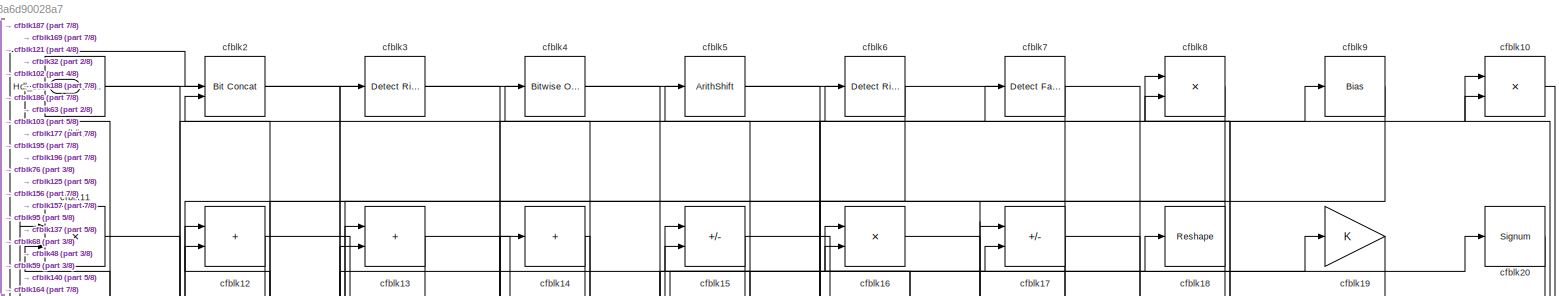
[diagram: root canvas - part 1/8, full width, top band]
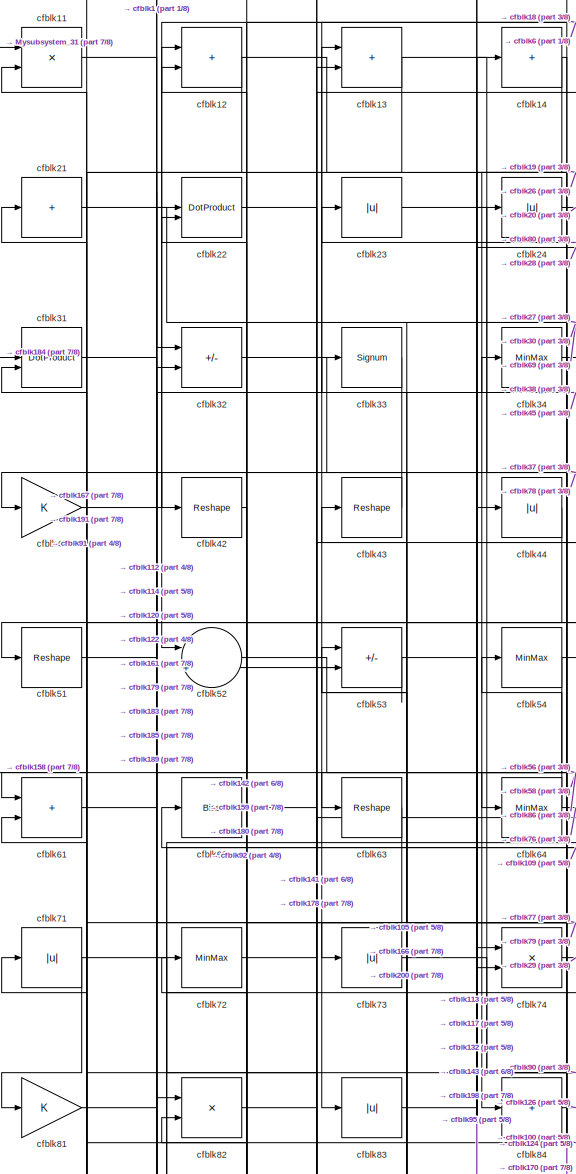
[diagram: root canvas - part 2/8, top left region]
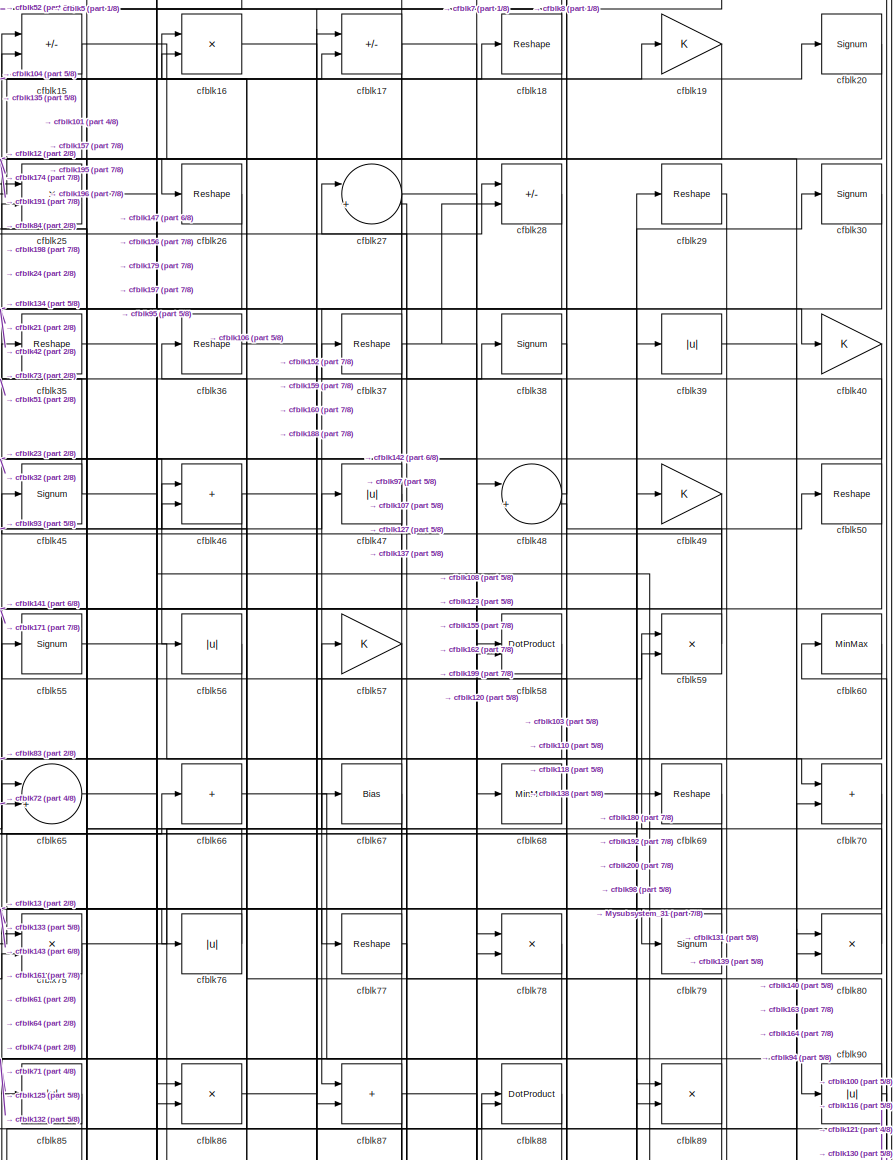
[diagram: root canvas - part 3/8, top right region]
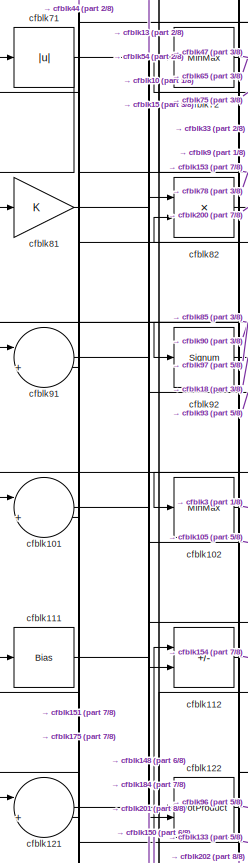
[diagram: root canvas - part 4/8, middle left region]
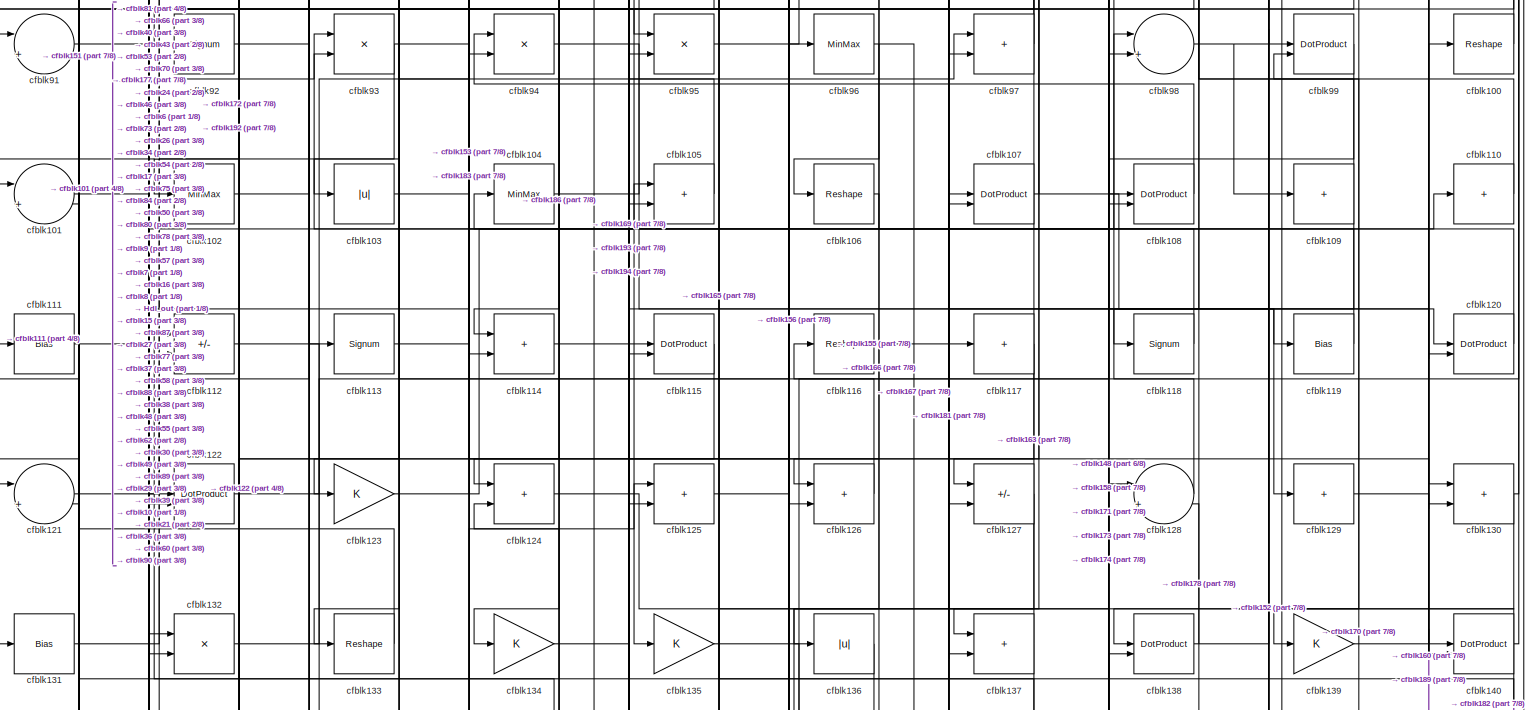
[diagram: root canvas - part 5/8, full width, middle band]
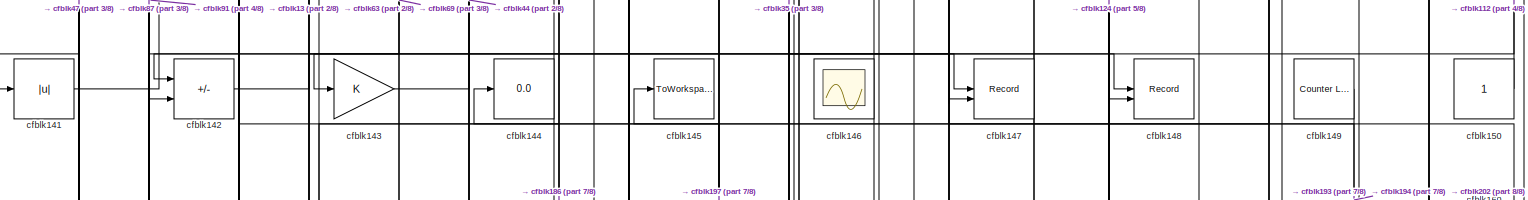
[diagram: root canvas - part 6/8, full width, bottom band]
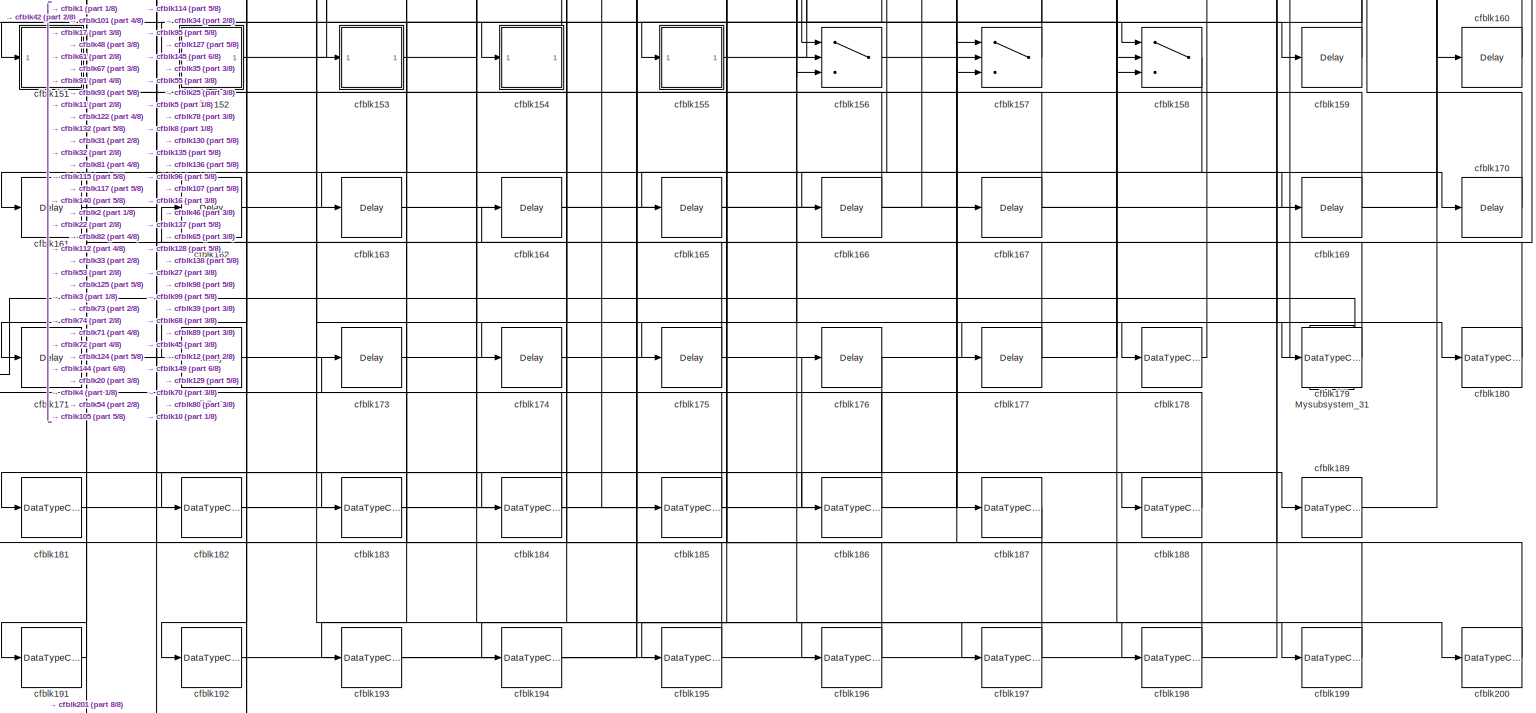
[diagram: root canvas - part 7/8, full width, bottom band]
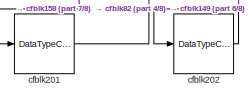
[diagram: root canvas - part 8/8, bottom left region]
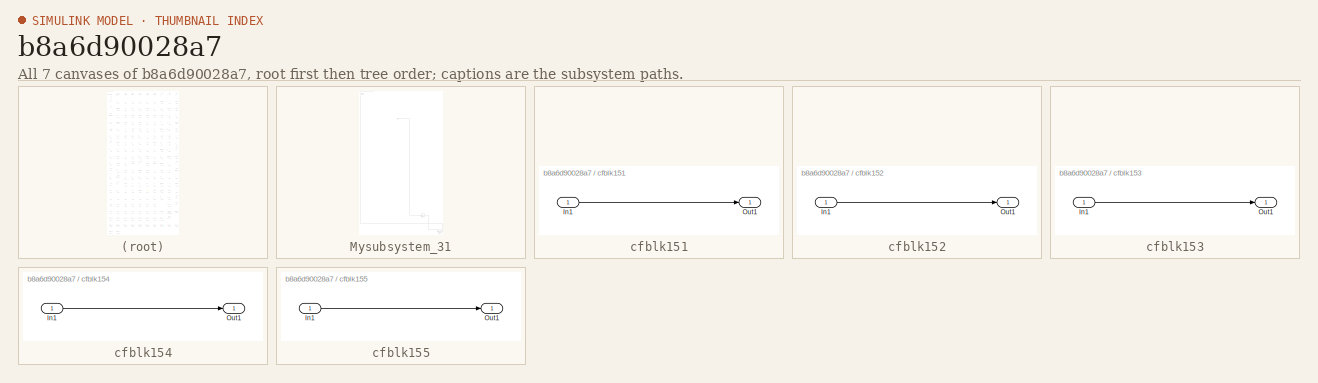
[diagram: thumbnail index - all 7 canvases of the model, root first then tree order]
MODEL slx_b8a6d90028a7
KIND model
CONFIG AbsTol = auto
CONFIG EnableMultiTasking = off
CONFIG FixedStep = auto
CONFIG MaxStep = auto
CONFIG MinStep = auto
CONFIG RelTol = 1e-3
CONFIG SampleTimeConstraint = Unconstrained
CONFIG SolverName = VariableStepAuto
CONFIG StartTime = 0.0
CONFIG StopTime = 10.0
BLOCK [Outport] Hdl_out
  OutDataTypeStr = uint8
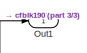
[diagram: Mysubsystem_31 - part 1/3, top left region]
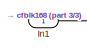
[diagram: Mysubsystem_31 - part 2/3, top center region]
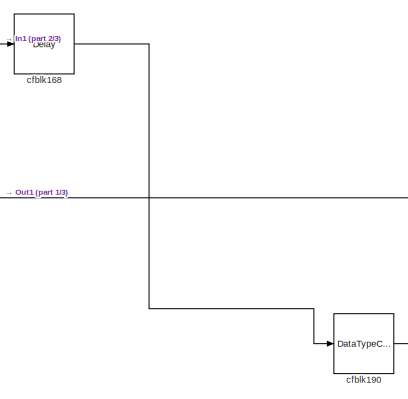
[diagram: Mysubsystem_31 - part 3/3, bottom right region]
BLOCK [SubSystem] Mysubsystem_31
  RTWFcnName = Mysubsystem_31
  RTWFcnNameOpts = User specified
  RTWFileNameOpts = Use function name
  RTWSystemCode = Reusable function
  TreatAsAtomicUnit = on
BLOCK [Inport] Mysubsystem_31/In1
BLOCK [Outport] Mysubsystem_31/Out1
BLOCK [Delay] Mysubsystem_31/cfblk168
  InputPortMap = u0
  SampleTime = 1
BLOCK [DataTypeConversion] Mysubsystem_31/cfblk190
  OutDataTypeStr = uint8
  RndMeth = Floor
  SaturateOnIntegerOverflow = off
BLOCK [Reference] cfblk1  REF=simulink/Logic and Bit
Operations/Detect
Change
  LibrarySourceBlock = hdlsllib/Logic and Bit\nOperations/Detect\nChange
  SourceBlock = simulink/Logic and Bit\nOperations/Detect\nChange
  SourceType = Detect Change
BLOCK [Product] cfblk10
  Inputs = */
  OutDataTypeStr = uint8
  RndMeth = Zero
  SaturateOnIntegerOverflow = on
BLOCK [Reshape] cfblk100
BLOCK [Sum] cfblk101
  Inputs = |++
  OutDataTypeStr = uint8
BLOCK [MinMax] cfblk102
  OutDataTypeStr = uint8
BLOCK [Abs] cfblk103
  OutDataTypeStr = uint8
  SaturateOnIntegerOverflow = off
BLOCK [MinMax] cfblk104
  OutDataTypeStr = uint8
BLOCK [Sum] cfblk105
  IconShape = rectangular
  OutDataTypeStr = uint8
BLOCK [Reshape] cfblk106
BLOCK [DotProduct] cfblk107
  OutDataTypeStr = uint8
BLOCK [DotProduct] cfblk108
  OutDataTypeStr = uint8
BLOCK [Sum] cfblk109
  IconShape = rectangular
  Inputs = +
  OutDataTypeStr = uint8
BLOCK [Product] cfblk11
  Inputs = */
  OutDataTypeStr = uint8
  RndMeth = Zero
  SaturateOnIntegerOverflow = on
BLOCK [Sum] cfblk110
  IconShape = rectangular
  Inputs = +
  OutDataTypeStr = uint8
BLOCK [Bias] cfblk111
  Bias = 0.0
  SaturateOnIntegerOverflow = off
BLOCK [Sum] cfblk112
  IconShape = rectangular
  Inputs = +-
  OutDataTypeStr = uint8
BLOCK [Signum] cfblk113
BLOCK [Sum] cfblk114
  IconShape = rectangular
  OutDataTypeStr = uint8
BLOCK [DotProduct] cfblk115
  OutDataTypeStr = uint8
BLOCK [Reshape] cfblk116
BLOCK [Sum] cfblk117
  IconShape = rectangular
  Inputs = +
  OutDataTypeStr = uint8
BLOCK [Signum] cfblk118
BLOCK [Bias] cfblk119
  Bias = 0.0
  SaturateOnIntegerOverflow = off
BLOCK [Sum] cfblk12
  IconShape = rectangular
  OutDataTypeStr = uint8
BLOCK [DotProduct] cfblk120
  OutDataTypeStr = uint8
BLOCK [Sum] cfblk121
  Inputs = |++
  OutDataTypeStr = uint8
BLOCK [DotProduct] cfblk122
  OutDataTypeStr = uint8
BLOCK [Gain] cfblk123
  OutDataTypeStr = uint8
BLOCK [Sum] cfblk124
  IconShape = rectangular
  OutDataTypeStr = uint8
BLOCK [Sum] cfblk125
  IconShape = rectangular
  OutDataTypeStr = uint8
BLOCK [Sum] cfblk126
  IconShape = rectangular
  OutDataTypeStr = uint8
BLOCK [Sum] cfblk127
  IconShape = rectangular
  Inputs = +-
  OutDataTypeStr = uint8
BLOCK [Sum] cfblk128
  Inputs = |++
  OutDataTypeStr = uint8
BLOCK [Sum] cfblk129
  IconShape = rectangular
  Inputs = +
  OutDataTypeStr = uint8
BLOCK [Sum] cfblk13
  IconShape = rectangular
  OutDataTypeStr = uint8
BLOCK [Sum] cfblk130
  IconShape = rectangular
  OutDataTypeStr = uint8
BLOCK [Bias] cfblk131
  Bias = 0.0
  SaturateOnIntegerOverflow = off
BLOCK [Product] cfblk132
  Inputs = */
  OutDataTypeStr = uint8
  RndMeth = Zero
  SaturateOnIntegerOverflow = on
BLOCK [Reshape] cfblk133
BLOCK [Gain] cfblk134
  OutDataTypeStr = uint8
BLOCK [Gain] cfblk135
  OutDataTypeStr = uint8
BLOCK [Abs] cfblk136
  OutDataTypeStr = uint8
  SaturateOnIntegerOverflow = off
BLOCK [Sum] cfblk137
  IconShape = rectangular
  OutDataTypeStr = uint8
BLOCK [DotProduct] cfblk138
  OutDataTypeStr = uint8
BLOCK [Gain] cfblk139
  OutDataTypeStr = uint8
BLOCK [Sum] cfblk14
  IconShape = rectangular
  Inputs = +
  OutDataTypeStr = uint8
BLOCK [DotProduct] cfblk140
  OutDataTypeStr = uint8
BLOCK [Abs] cfblk141
  OutDataTypeStr = uint8
  SaturateOnIntegerOverflow = off
BLOCK [Sum] cfblk142
  IconShape = rectangular
  Inputs = +-
  OutDataTypeStr = uint8
BLOCK [Gain] cfblk143
  OutDataTypeStr = uint8
BLOCK [Display] cfblk144
  Decimation = 1
BLOCK [ToWorkspace] cfblk145
  MaxDataPoints = inf
  SampleTime = -1
  SaveFormat = Timeseries
  VariableName = simout
BLOCK [Scope] cfblk146
  Floating = on
  NumInputPorts = 1
  ScopeSpecificationString = Simulink.scopes.TimeScopeBlockCfg('CurrentConfiguration', extmgr.ConfigurationSet(extmgr.Configuration('Core','General UI',true,'FigureColor',[0.156862745098039 0.156862745098039 0.156862745098039]),extmgr.Configuration('Core','Source UI',true),extmgr.Configuration('Sources','WiredSimulink',true,'DataLoggingVariableName','ScopeData1','DataLoggingSaveFormat','StructureWithTime','DataLoggingLimitDat...<+2713ch>
BLOCK [Record] cfblk147
  CompatibilityTag = XY
  FileSettingsInternal = {"entries":[{"content":{"excelSettings":{"content":{},"type":"Streamout.ExcelSettings"}},"type":"Streamout.FileSettingStorage","uuid":""}],"packageUris":["http:\/\/schema.mathworks.com\/mf0\/streamout_blocks\/R2020a"],"version":"1.0"}
  Layout = [1 1]
  SignalsInternal = {"entries":[{"content":{"signals":[{"content":{"blockPath":[],"dimensions":[1],"domain":"","lineColor":"#a2142f","plots":[1],"port":1,"signalID":15163,"signalName":"cfblk142"},"type":"RecordBlkView.Signal","uuid":""},{"content":{"blockPath":[],"dimensions":[1],"domain":"","lineColor":"#139fff","plots":[1],"port":2,"signalID":15166,"signalName":"cfblk35"},"type":"RecordBlkView.Signal","uuid":""}]},...<+143ch>
  VisualizationBindings = {"xyplotplugin":{"info":[{"series":[{"bindingParametersList":[{"parameter":"X-Axis","signalID":15163,"signalName":"cfblk142"},{"parameter":"Y-Axis","signalID":15166,"signalName":"cfblk35"}],"seriesID":61678}],"subplotID":1}]}}
  st = -1
BLOCK [Record] cfblk148
  CompatibilityTag = XY
  FileSettingsInternal = {"entries":[{"content":{"excelSettings":{"content":{},"type":"Streamout.ExcelSettings"}},"type":"Streamout.FileSettingStorage","uuid":""}],"packageUris":["http:\/\/schema.mathworks.com\/mf0\/streamout_blocks\/R2020a"],"version":"1.0"}
  Layout = [1 1]
  SignalsInternal = {"entries":[{"content":{"signals":[{"content":{"blockPath":[],"dimensions":[1],"domain":"","lineColor":"#a2142f","plots":[1],"port":1,"signalID":15155,"signalName":"cfblk91"},"type":"RecordBlkView.Signal","uuid":""},{"content":{"blockPath":[],"dimensions":[1],"domain":"","lineColor":"#139fff","plots":[1],"port":2,"signalID":15158,"signalName":"cfblk124"},"type":"RecordBlkView.Signal","uuid":""}]},...<+143ch>
  VisualizationBindings = {"xyplotplugin":{"info":[{"series":[{"bindingParametersList":[{"parameter":"X-Axis","signalID":15155,"signalName":"cfblk91"},{"parameter":"Y-Axis","signalID":15158,"signalName":"cfblk124"}],"seriesID":49335}],"subplotID":1}]}}
  st = -1
BLOCK [Reference] cfblk149  REF=hdlsllib/Sources/Counter
Limited
  SourceBlock = hdlsllib/Sources/Counter\nLimited
  SourceType = Counter Limited
BLOCK [Sum] cfblk15
  IconShape = rectangular
  Inputs = +-
  OutDataTypeStr = uint8
BLOCK [Constant] cfblk150
  OutDataTypeStr = uint8
  SampleTime = -1
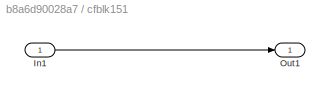
BLOCK [SubSystem] cfblk151
  LibrarySourceBlock = hdlsllib/Ports &\nSubsystems/Subsystem
BLOCK [Inport] cfblk151/In1
BLOCK [Outport] cfblk151/Out1
BLOCK [SubSystem] cfblk152
  LibrarySourceBlock = hdlsllib/Ports &\nSubsystems/Subsystem
BLOCK [Inport] cfblk152/In1
BLOCK [Outport] cfblk152/Out1
BLOCK [SubSystem] cfblk153
  LibrarySourceBlock = hdlsllib/Ports &\nSubsystems/Subsystem
BLOCK [Inport] cfblk153/In1
BLOCK [Outport] cfblk153/Out1
BLOCK [SubSystem] cfblk154
  LibrarySourceBlock = hdlsllib/Ports &\nSubsystems/Subsystem
BLOCK [Inport] cfblk154/In1
BLOCK [Outport] cfblk154/Out1
BLOCK [SubSystem] cfblk155
  LibrarySourceBlock = hdlsllib/Ports &\nSubsystems/Subsystem
BLOCK [Inport] cfblk155/In1
BLOCK [Outport] cfblk155/Out1
BLOCK [Switch] cfblk156
  InputSameDT = off
  OutDataTypeStr = uint8
  SaturateOnIntegerOverflow = off
BLOCK [Switch] cfblk157
  InputSameDT = off
  OutDataTypeStr = uint8
  SaturateOnIntegerOverflow = off
BLOCK [Switch] cfblk158
  InputSameDT = off
  OutDataTypeStr = uint8
  SaturateOnIntegerOverflow = off
BLOCK [Delay] cfblk159
  InputPortMap = u0
  SampleTime = 1
BLOCK [Product] cfblk16
  Inputs = */
  OutDataTypeStr = uint8
  RndMeth = Zero
  SaturateOnIntegerOverflow = on
BLOCK [Delay] cfblk160
  InputPortMap = u0
  SampleTime = 1
BLOCK [Delay] cfblk161
  InputPortMap = u0
  SampleTime = 1
BLOCK [Delay] cfblk162
  InputPortMap = u0
  SampleTime = 1
BLOCK [Delay] cfblk163
  InputPortMap = u0
  SampleTime = 1
BLOCK [Delay] cfblk164
  InputPortMap = u0
  SampleTime = 1
BLOCK [Delay] cfblk165
  InputPortMap = u0
  SampleTime = 1
BLOCK [Delay] cfblk166
  InputPortMap = u0
  SampleTime = 1
BLOCK [Delay] cfblk167
  InputPortMap = u0
  SampleTime = 1
BLOCK [Delay] cfblk169
  InputPortMap = u0
  SampleTime = 1
BLOCK [Sum] cfblk17
  IconShape = rectangular
  Inputs = +-
  OutDataTypeStr = uint8
BLOCK [Delay] cfblk170
  InputPortMap = u0
  SampleTime = 1
BLOCK [Delay] cfblk171
  InputPortMap = u0
  SampleTime = 1
BLOCK [Delay] cfblk172
  InputPortMap = u0
  SampleTime = 1
BLOCK [Delay] cfblk173
  InputPortMap = u0
  SampleTime = 1
BLOCK [Delay] cfblk174
  InputPortMap = u0
  SampleTime = 1
BLOCK [Delay] cfblk175
  InputPortMap = u0
  SampleTime = 1
BLOCK [Delay] cfblk176
  InputPortMap = u0
  SampleTime = 1
BLOCK [Delay] cfblk177
  InputPortMap = u0
  SampleTime = 1
BLOCK [DataTypeConversion] cfblk178
  OutDataTypeStr = uint8
  RndMeth = Floor
  SaturateOnIntegerOverflow = off
BLOCK [DataTypeConversion] cfblk179
  OutDataTypeStr = uint8
  RndMeth = Floor
  SaturateOnIntegerOverflow = off
BLOCK [Reshape] cfblk18
BLOCK [DataTypeConversion] cfblk180
  OutDataTypeStr = uint8
  RndMeth = Floor
  SaturateOnIntegerOverflow = off
BLOCK [DataTypeConversion] cfblk181
  OutDataTypeStr = uint8
  RndMeth = Floor
  SaturateOnIntegerOverflow = off
BLOCK [DataTypeConversion] cfblk182
  OutDataTypeStr = uint8
  RndMeth = Floor
  SaturateOnIntegerOverflow = off
BLOCK [DataTypeConversion] cfblk183
  OutDataTypeStr = uint8
  RndMeth = Floor
  SaturateOnIntegerOverflow = off
BLOCK [DataTypeConversion] cfblk184
  OutDataTypeStr = uint8
  RndMeth = Floor
  SaturateOnIntegerOverflow = off
BLOCK [DataTypeConversion] cfblk185
  OutDataTypeStr = uint8
  RndMeth = Floor
  SaturateOnIntegerOverflow = off
BLOCK [DataTypeConversion] cfblk186
  OutDataTypeStr = uint8
  RndMeth = Floor
  SaturateOnIntegerOverflow = off
BLOCK [DataTypeConversion] cfblk187
  OutDataTypeStr = uint8
  RndMeth = Floor
  SaturateOnIntegerOverflow = off
BLOCK [DataTypeConversion] cfblk188
  OutDataTypeStr = uint8
  RndMeth = Floor
  SaturateOnIntegerOverflow = off
BLOCK [DataTypeConversion] cfblk189
  OutDataTypeStr = uint8
  RndMeth = Floor
  SaturateOnIntegerOverflow = off
BLOCK [Gain] cfblk19
  OutDataTypeStr = uint8
BLOCK [DataTypeConversion] cfblk191
  OutDataTypeStr = uint8
  RndMeth = Floor
  SaturateOnIntegerOverflow = off
BLOCK [DataTypeConversion] cfblk192
  OutDataTypeStr = uint8
  RndMeth = Floor
  SaturateOnIntegerOverflow = off
BLOCK [DataTypeConversion] cfblk193
  OutDataTypeStr = uint8
  RndMeth = Floor
  SaturateOnIntegerOverflow = off
BLOCK [DataTypeConversion] cfblk194
  OutDataTypeStr = uint8
  RndMeth = Floor
  SaturateOnIntegerOverflow = off
BLOCK [DataTypeConversion] cfblk195
  OutDataTypeStr = uint8
  RndMeth = Floor
  SaturateOnIntegerOverflow = off
BLOCK [DataTypeConversion] cfblk196
  OutDataTypeStr = uint8
  RndMeth = Floor
  SaturateOnIntegerOverflow = off
BLOCK [DataTypeConversion] cfblk197
  OutDataTypeStr = uint8
  RndMeth = Floor
  SaturateOnIntegerOverflow = off
BLOCK [DataTypeConversion] cfblk198
  OutDataTypeStr = uint8
  RndMeth = Floor
  SaturateOnIntegerOverflow = off
BLOCK [DataTypeConversion] cfblk199
  OutDataTypeStr = uint8
  RndMeth = Floor
  SaturateOnIntegerOverflow = off
BLOCK [Reference] cfblk2  REF=hdlsllib/Logic and Bit
Operations/Bit Concat
  SourceBlock = hdlsllib/Logic and Bit\nOperations/Bit Concat
  SourceType = Bit Concat
BLOCK [Signum] cfblk20
BLOCK [DataTypeConversion] cfblk200
  OutDataTypeStr = uint8
  RndMeth = Floor
  SaturateOnIntegerOverflow = off
BLOCK [DataTypeConversion] cfblk201
  OutDataTypeStr = uint8
  RndMeth = Floor
  SaturateOnIntegerOverflow = off
BLOCK [DataTypeConversion] cfblk202
  OutDataTypeStr = uint8
  RndMeth = Floor
  SaturateOnIntegerOverflow = off
BLOCK [Sum] cfblk21
  IconShape = rectangular
  Inputs = +
  OutDataTypeStr = uint8
BLOCK [DotProduct] cfblk22
  OutDataTypeStr = uint8
BLOCK [Abs] cfblk23
  OutDataTypeStr = uint8
  SaturateOnIntegerOverflow = off
BLOCK [Abs] cfblk24
  OutDataTypeStr = uint8
  SaturateOnIntegerOverflow = off
BLOCK [Product] cfblk25
  Inputs = */
  OutDataTypeStr = uint8
  RndMeth = Zero
  SaturateOnIntegerOverflow = on
BLOCK [Reshape] cfblk26
BLOCK [Sum] cfblk27
  Inputs = |++
  OutDataTypeStr = uint8
BLOCK [Sum] cfblk28
  IconShape = rectangular
  Inputs = +-
  OutDataTypeStr = uint8
BLOCK [Reshape] cfblk29
BLOCK [Reference] cfblk3  REF=hdlsllib/Logic and Bit
Operations/Detect Rise
Positive
  SourceBlock = hdlsllib/Logic and Bit\nOperations/Detect Rise\nPositive
  SourceType = Detect Rise Positive
BLOCK [Signum] cfblk30
BLOCK [DotProduct] cfblk31
  OutDataTypeStr = uint8
BLOCK [Sum] cfblk32
  IconShape = rectangular
  Inputs = +-
  OutDataTypeStr = uint8
BLOCK [Signum] cfblk33
BLOCK [MinMax] cfblk34
  OutDataTypeStr = uint8
BLOCK [Reshape] cfblk35
BLOCK [Reshape] cfblk36
BLOCK [Reshape] cfblk37
BLOCK [Signum] cfblk38
BLOCK [Abs] cfblk39
  OutDataTypeStr = uint8
  SaturateOnIntegerOverflow = off
BLOCK [Reference] cfblk4  REF=simulink/Logic and Bit
Operations/Bitwise
Operator
  LibrarySourceBlock = hdlsllib/Logic and Bit\nOperations/Bitwise\nOperator
  SourceBlock = simulink/Logic and Bit\nOperations/Bitwise\nOperator
  SourceType = Bitwise Operator
BLOCK [Gain] cfblk40
  OutDataTypeStr = uint8
BLOCK [Gain] cfblk41
  OutDataTypeStr = uint8
BLOCK [Reshape] cfblk42
BLOCK [Reshape] cfblk43
BLOCK [Abs] cfblk44
  OutDataTypeStr = uint8
  SaturateOnIntegerOverflow = off
BLOCK [Signum] cfblk45
BLOCK [Sum] cfblk46
  IconShape = rectangular
  OutDataTypeStr = uint8
BLOCK [Abs] cfblk47
  OutDataTypeStr = uint8
  SaturateOnIntegerOverflow = off
BLOCK [Sum] cfblk48
  Inputs = |++
  OutDataTypeStr = uint8
BLOCK [Gain] cfblk49
  OutDataTypeStr = uint8
BLOCK [ArithShift] cfblk5
  BitShiftNumber = 8
  InputPortMap = u0
BLOCK [Reshape] cfblk50
BLOCK [Reshape] cfblk51
BLOCK [Sum] cfblk52
  Inputs = |++
  OutDataTypeStr = uint8
BLOCK [Sum] cfblk53
  IconShape = rectangular
  Inputs = +-
  OutDataTypeStr = uint8
BLOCK [MinMax] cfblk54
  OutDataTypeStr = uint8
BLOCK [Signum] cfblk55
BLOCK [Abs] cfblk56
  OutDataTypeStr = uint8
  SaturateOnIntegerOverflow = off
BLOCK [Gain] cfblk57
  OutDataTypeStr = uint8
BLOCK [DotProduct] cfblk58
  OutDataTypeStr = uint8
BLOCK [Product] cfblk59
  Inputs = */
  OutDataTypeStr = uint8
  RndMeth = Zero
  SaturateOnIntegerOverflow = on
BLOCK [Reference] cfblk6  REF=hdlsllib/Logic and Bit
Operations/Detect Rise
Nonnegative
  SourceBlock = hdlsllib/Logic and Bit\nOperations/Detect Rise\nNonnegative
  SourceType = Detect Rise Nonnegative
BLOCK [MinMax] cfblk60
  OutDataTypeStr = uint8
BLOCK [Sum] cfblk61
  IconShape = rectangular
  OutDataTypeStr = uint8
BLOCK [Bias] cfblk62
  Bias = 0.0
  SaturateOnIntegerOverflow = off
BLOCK [Reshape] cfblk63
BLOCK [MinMax] cfblk64
  OutDataTypeStr = uint8
BLOCK [Sum] cfblk65
  Inputs = |++
  OutDataTypeStr = uint8
BLOCK [Sum] cfblk66
  IconShape = rectangular
  Inputs = +
  OutDataTypeStr = uint8
BLOCK [Bias] cfblk67
  Bias = 0.0
  SaturateOnIntegerOverflow = off
BLOCK [MinMax] cfblk68
  OutDataTypeStr = uint8
BLOCK [Reshape] cfblk69
BLOCK [Reference] cfblk7  REF=hdlsllib/Logic and Bit
Operations/Detect Fall
Negative
  SourceBlock = hdlsllib/Logic and Bit\nOperations/Detect Fall\nNegative
  SourceType = Detect Fall Negative
BLOCK [Sum] cfblk70
  IconShape = rectangular
  OutDataTypeStr = uint8
BLOCK [Abs] cfblk71
  OutDataTypeStr = uint8
  SaturateOnIntegerOverflow = off
BLOCK [MinMax] cfblk72
  OutDataTypeStr = uint8
BLOCK [Abs] cfblk73
  OutDataTypeStr = uint8
  SaturateOnIntegerOverflow = off
BLOCK [Product] cfblk74
  Inputs = */
  OutDataTypeStr = uint8
  RndMeth = Zero
  SaturateOnIntegerOverflow = on
BLOCK [Product] cfblk75
  Inputs = */
  OutDataTypeStr = uint8
  RndMeth = Zero
  SaturateOnIntegerOverflow = on
BLOCK [Abs] cfblk76
  OutDataTypeStr = uint8
  SaturateOnIntegerOverflow = off
BLOCK [Reshape] cfblk77
BLOCK [Product] cfblk78
  Inputs = */
  OutDataTypeStr = uint8
  RndMeth = Zero
  SaturateOnIntegerOverflow = on
BLOCK [Signum] cfblk79
BLOCK [Product] cfblk8
  Inputs = */
  OutDataTypeStr = uint8
  RndMeth = Zero
  SaturateOnIntegerOverflow = on
BLOCK [Product] cfblk80
  Inputs = */
  OutDataTypeStr = uint8
  RndMeth = Zero
  SaturateOnIntegerOverflow = on
BLOCK [Gain] cfblk81
  OutDataTypeStr = uint8
BLOCK [Product] cfblk82
  Inputs = */
  OutDataTypeStr = uint8
  RndMeth = Zero
  SaturateOnIntegerOverflow = on
BLOCK [Abs] cfblk83
  OutDataTypeStr = uint8
  SaturateOnIntegerOverflow = off
BLOCK [Sum] cfblk84
  IconShape = rectangular
  Inputs = +
  OutDataTypeStr = uint8
BLOCK [Abs] cfblk85
  OutDataTypeStr = uint8
  SaturateOnIntegerOverflow = off
BLOCK [Product] cfblk86
  Inputs = */
  OutDataTypeStr = uint8
  RndMeth = Zero
  SaturateOnIntegerOverflow = on
BLOCK [Sum] cfblk87
  IconShape = rectangular
  OutDataTypeStr = uint8
BLOCK [DotProduct] cfblk88
  OutDataTypeStr = uint8
BLOCK [Product] cfblk89
  Inputs = */
  OutDataTypeStr = uint8
  RndMeth = Zero
  SaturateOnIntegerOverflow = on
BLOCK [Bias] cfblk9
  Bias = 0.0
  SaturateOnIntegerOverflow = off
BLOCK [Abs] cfblk90
  OutDataTypeStr = uint8
  SaturateOnIntegerOverflow = off
BLOCK [Sum] cfblk91
  Inputs = |++
  OutDataTypeStr = uint8
BLOCK [Signum] cfblk92
BLOCK [Product] cfblk93
  Inputs = */
  OutDataTypeStr = uint8
  RndMeth = Zero
  SaturateOnIntegerOverflow = on
BLOCK [Product] cfblk94
  Inputs = */
  OutDataTypeStr = uint8
  RndMeth = Zero
  SaturateOnIntegerOverflow = on
BLOCK [Product] cfblk95
  Inputs = */
  OutDataTypeStr = uint8
  RndMeth = Zero
  SaturateOnIntegerOverflow = on
BLOCK [MinMax] cfblk96
  OutDataTypeStr = uint8
BLOCK [Sum] cfblk97
  IconShape = rectangular
  OutDataTypeStr = uint8
BLOCK [Sum] cfblk98
  Inputs = |++
  OutDataTypeStr = uint8
BLOCK [DotProduct] cfblk99
  OutDataTypeStr = uint8
LINE Mysubsystem_31/In1:1 -> Mysubsystem_31/cfblk168:1
LINE Mysubsystem_31/cfblk168:1 -> Mysubsystem_31/cfblk190:1
LINE Mysubsystem_31/cfblk190:1 -> Mysubsystem_31/Out1:1
LINE Mysubsystem_31:1 -> cfblk11:1
NET cfblk100:1 -> cfblk21:1, cfblk36:1
LINE cfblk101:1 -> cfblk93:2
LINE cfblk102:1 -> cfblk3:1
LINE cfblk103:1 -> cfblk6:1
LINE cfblk104:1 -> cfblk80:2
LINE cfblk105:1 -> cfblk53:1
LINE cfblk106:1 -> cfblk126:1
NET cfblk107:1 -> cfblk119:1, cfblk27:2
LINE cfblk108:1 -> cfblk94:1
NET cfblk109:1 -> cfblk127:2, cfblk62:1
LINE cfblk10:1 -> cfblk164:1
LINE cfblk110:1 -> cfblk55:1
LINE cfblk111:1 -> cfblk105:1
LINE cfblk112:1 -> cfblk154:1
LINE cfblk113:1 -> cfblk24:1
LINE cfblk114:1 -> cfblk169:1
LINE cfblk115:1 -> cfblk192:1
LINE cfblk116:1 -> cfblk88:2
NET cfblk117:1 -> cfblk136:1, cfblk172:1
LINE cfblk118:1 -> cfblk93:1
LINE cfblk119:1 -> cfblk104:1
LINE cfblk11:1 -> cfblk189:1
NET cfblk120:1 -> cfblk16:2, cfblk88:1
NET cfblk121:1 -> cfblk10:2, cfblk15:1
LINE cfblk122:1 -> cfblk96:1
NET cfblk123:1 -> cfblk110:1, cfblk58:1
LINE cfblk124:1 -> cfblk148:2
LINE cfblk125:1 -> cfblk9:1
LINE cfblk126:1 -> cfblk43:1
LINE cfblk127:1 -> cfblk165:1
LINE cfblk128:1 -> cfblk98:1
LINE cfblk129:1 -> cfblk160:1
NET cfblk12:1 -> cfblk26:1, cfblk51:1
NET cfblk130:1 -> cfblk156:1, cfblk60:1
LINE cfblk131:1 -> cfblk66:1
LINE cfblk132:1 -> cfblk14:1
LINE cfblk133:1 -> cfblk111:1
NET cfblk134:1 -> cfblk17:2, cfblk97:1
LINE cfblk135:1 -> cfblk158:3
LINE cfblk136:1 -> cfblk155:1
NET cfblk137:1 -> Hdl_out:1, cfblk163:1
NET cfblk138:1 -> cfblk48:2, cfblk49:1
LINE cfblk139:1 -> cfblk100:1
NET cfblk13:1 -> cfblk122:2, cfblk77:1, cfblk90:1
NET cfblk140:1 -> cfblk10:1, cfblk138:1, cfblk182:1
LINE cfblk141:1 -> cfblk13:2
LINE cfblk142:1 -> cfblk147:1
LINE cfblk143:1 -> cfblk44:1
NET cfblk149:1 -> cfblk193:1, cfblk194:1, cfblk202:1
NET cfblk14:1 -> cfblk124:1, cfblk74:2
LINE cfblk150:1 -> cfblk112:1
LINE cfblk151/In1:1 -> cfblk151/Out1:1
LINE cfblk151:1 -> cfblk91:2
LINE cfblk152/In1:1 -> cfblk152/Out1:1
LINE cfblk152:1 -> cfblk99:1
LINE cfblk153/In1:1 -> cfblk153/Out1:1
LINE cfblk153:1 -> cfblk125:1
LINE cfblk154/In1:1 -> cfblk154/Out1:1
NET cfblk154:1 -> cfblk71:1, cfblk72:1
LINE cfblk155/In1:1 -> cfblk155/Out1:1
LINE cfblk155:1 -> cfblk48:1
LINE cfblk156:1 -> cfblk187:1
LINE cfblk157:1 -> cfblk65:1
NET cfblk158:1 -> cfblk175:1, cfblk201:1
LINE cfblk159:1 -> cfblk12:2
NET cfblk15:1 -> cfblk130:1, cfblk94:2
LINE cfblk160:1 -> cfblk17:1
LINE cfblk161:1 -> cfblk32:2
LINE cfblk162:1 -> cfblk78:2
LINE cfblk163:1 -> cfblk80:1
LINE cfblk164:1 -> cfblk70:2
LINE cfblk165:1 -> cfblk157:1
LINE cfblk166:1 -> cfblk53:2
LINE cfblk167:1 -> cfblk61:2
LINE cfblk169:1 -> cfblk1:1
NET cfblk16:1 -> cfblk159:1, cfblk89:2
LINE cfblk170:1 -> cfblk99:2
LINE cfblk171:1 -> cfblk98:2
LINE cfblk172:1 -> cfblk105:2
LINE cfblk173:1 -> cfblk138:2
LINE cfblk174:1 -> cfblk128:1
LINE cfblk175:1 -> cfblk101:2
LINE cfblk176:1 -> cfblk181:1
LINE cfblk177:1 -> cfblk132:1
LINE cfblk178:1 -> cfblk128:2
LINE cfblk179:1 -> cfblk22:1
NET cfblk17:1 -> cfblk191:1, cfblk40:1
LINE cfblk180:1 -> cfblk22:2
LINE cfblk181:1 -> cfblk107:2
LINE cfblk182:1 -> cfblk176:1
NET cfblk183:1 -> cfblk107:1, cfblk74:1, cfblk95:2
LINE cfblk184:1 -> cfblk31:1
LINE cfblk185:1 -> cfblk31:2
NET cfblk186:1 -> cfblk124:2, cfblk144:1, cfblk162:1
LINE cfblk187:1 -> cfblk2:1
LINE cfblk188:1 -> cfblk2:2
LINE cfblk189:1 -> cfblk140:1
NET cfblk18:1 -> cfblk52:1, cfblk86:2
LINE cfblk191:1 -> cfblk11:2
LINE cfblk192:1 -> cfblk39:1
LINE cfblk193:1 -> cfblk115:1
LINE cfblk194:1 -> cfblk115:2
LINE cfblk195:1 -> cfblk4:1
LINE cfblk196:1 -> cfblk35:1
NET cfblk197:1 -> cfblk145:1, cfblk173:1
LINE cfblk198:1 -> cfblk25:1
LINE cfblk199:1 -> cfblk25:2
NET cfblk19:1 -> cfblk75:1, cfblk84:1
LINE cfblk1:1 -> cfblk32:1
NET cfblk200:1 -> cfblk122:1, cfblk157:2, cfblk33:1, cfblk89:1
LINE cfblk201:1 -> cfblk82:1
LINE cfblk202:1 -> cfblk82:2
LINE cfblk20:1 -> cfblk174:1
NET cfblk21:1 -> cfblk114:2, cfblk69:1
LINE cfblk22:1 -> cfblk178:1
LINE cfblk23:1 -> cfblk78:1
LINE cfblk24:1 -> cfblk20:1
LINE cfblk25:1 -> cfblk197:1
LINE cfblk26:1 -> cfblk134:1
NET cfblk27:1 -> cfblk199:1, cfblk42:1
LINE cfblk28:1 -> cfblk87:1
LINE cfblk29:1 -> cfblk139:1
LINE cfblk2:1 -> cfblk186:1
LINE cfblk30:1 -> cfblk73:1
LINE cfblk31:1 -> cfblk183:1
LINE cfblk32:1 -> cfblk56:1
LINE cfblk33:1 -> cfblk92:1
NET cfblk34:1 -> cfblk114:1, cfblk170:1
LINE cfblk35:1 -> cfblk147:2
LINE cfblk36:1 -> cfblk70:1
NET cfblk37:1 -> cfblk108:1, cfblk28:2, cfblk61:1
LINE cfblk38:1 -> cfblk118:1
LINE cfblk39:1 -> cfblk140:2
LINE cfblk3:1 -> cfblk177:1
LINE cfblk40:1 -> cfblk123:1
LINE cfblk41:1 -> cfblk12:1
LINE cfblk42:1 -> cfblk158:1
LINE cfblk43:1 -> cfblk41:1
LINE cfblk44:1 -> cfblk91:1
NET cfblk45:1 -> Mysubsystem_31:1, cfblk13:1
NET cfblk46:1 -> cfblk152:1, cfblk188:1
LINE cfblk47:1 -> cfblk141:1
NET cfblk48:1 -> cfblk171:1, cfblk37:1, cfblk8:2
LINE cfblk49:1 -> cfblk85:1
LINE cfblk4:1 -> cfblk196:1
NET cfblk50:1 -> cfblk135:1, cfblk27:1
LINE cfblk51:1 -> cfblk38:1
LINE cfblk52:1 -> cfblk86:1
NET cfblk53:1 -> cfblk52:2, cfblk95:1
NET cfblk54:1 -> cfblk112:2, cfblk120:2, cfblk185:1
NET cfblk55:1 -> cfblk195:1, cfblk87:2
LINE cfblk56:1 -> cfblk64:1
LINE cfblk57:1 -> cfblk106:1
LINE cfblk58:1 -> cfblk83:1
NET cfblk59:1 -> cfblk45:1, cfblk8:1
LINE cfblk5:1 -> cfblk157:3
LINE cfblk60:1 -> cfblk137:1
NET cfblk61:1 -> cfblk34:1, cfblk79:1
LINE cfblk62:1 -> cfblk113:1
LINE cfblk63:1 -> cfblk142:1
NET cfblk64:1 -> cfblk54:1, cfblk76:1
LINE cfblk65:1 -> cfblk179:1
LINE cfblk66:1 -> cfblk108:2
LINE cfblk67:1 -> cfblk161:1
NET cfblk68:1 -> cfblk180:1, cfblk50:1
LINE cfblk69:1 -> cfblk143:1
LINE cfblk6:1 -> cfblk63:1
LINE cfblk70:1 -> cfblk133:1
NET cfblk71:1 -> cfblk153:1, cfblk75:2, cfblk81:1
NET cfblk72:1 -> cfblk47:1, cfblk65:2
NET cfblk73:1 -> cfblk117:1, cfblk198:1
NET cfblk74:1 -> cfblk19:1, cfblk29:1
NET cfblk75:1 -> cfblk125:2, cfblk58:2
LINE cfblk76:1 -> cfblk5:1
LINE cfblk77:1 -> cfblk127:1
NET cfblk78:1 -> cfblk121:2, cfblk132:2, cfblk156:3
LINE cfblk79:1 -> cfblk59:1
LINE cfblk7:1 -> cfblk68:1
NET cfblk80:1 -> cfblk23:1, cfblk46:1
NET cfblk81:1 -> cfblk184:1, cfblk97:2
LINE cfblk82:1 -> cfblk200:1
LINE cfblk83:1 -> cfblk28:1
LINE cfblk84:1 -> cfblk126:2
LINE cfblk85:1 -> cfblk101:1
LINE cfblk86:1 -> cfblk59:2
NET cfblk87:1 -> cfblk120:1, cfblk142:2
LINE cfblk88:1 -> cfblk103:1
NET cfblk89:1 -> cfblk131:1, cfblk67:1
NET cfblk8:1 -> cfblk137:2, cfblk156:2
NET cfblk90:1 -> cfblk116:1, cfblk121:1, cfblk16:1
LINE cfblk91:1 -> cfblk148:1
LINE cfblk92:1 -> cfblk18:1
NET cfblk93:1 -> cfblk130:2, cfblk151:1, cfblk46:2
LINE cfblk94:1 -> cfblk129:1
NET cfblk95:1 -> cfblk57:1, cfblk7:1
NET cfblk96:1 -> cfblk166:1, cfblk167:1
LINE cfblk97:1 -> cfblk15:2
NET cfblk98:1 -> cfblk109:1, cfblk30:1
LINE cfblk99:1 -> cfblk158:2
LINE cfblk9:1 -> cfblk102:1
note: NET lines group one-source signal fan-out (src -> all destinations, sorted); 1:1 wires keep LINE
